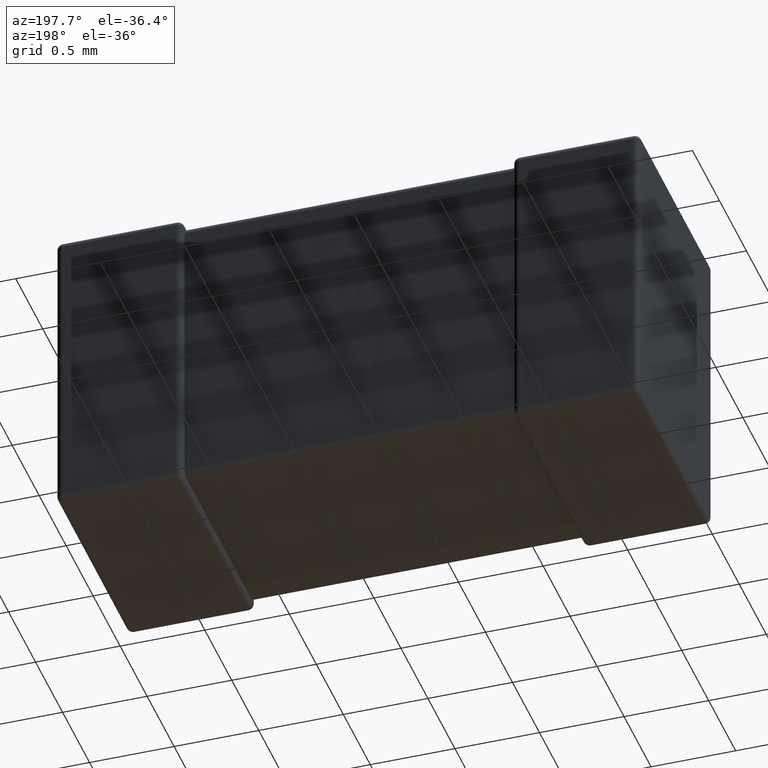
[diagram: clean part render]
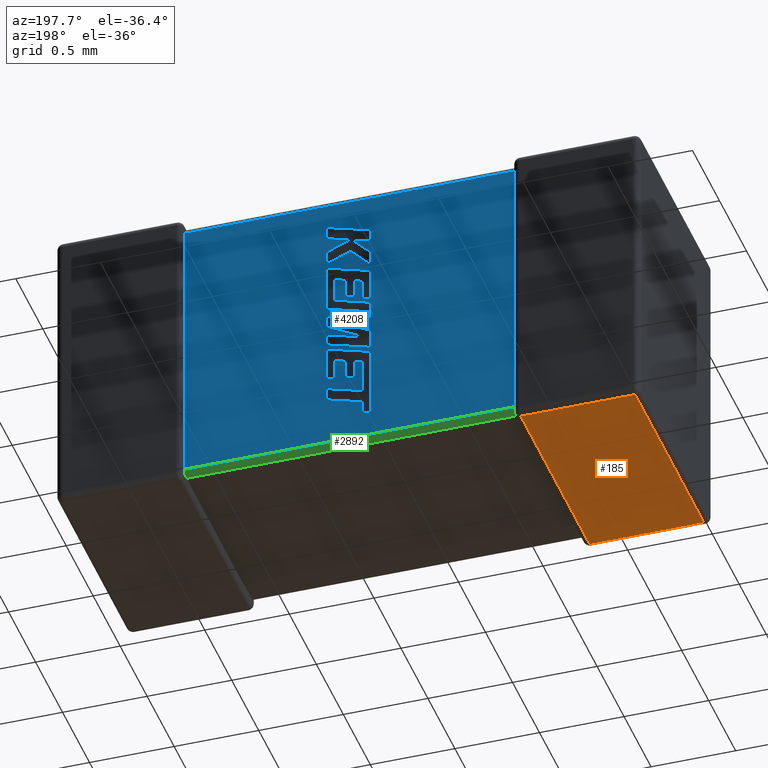
[diagram: same view with three faces highlighted in distinct colors, each labeled with its STEP entity id]
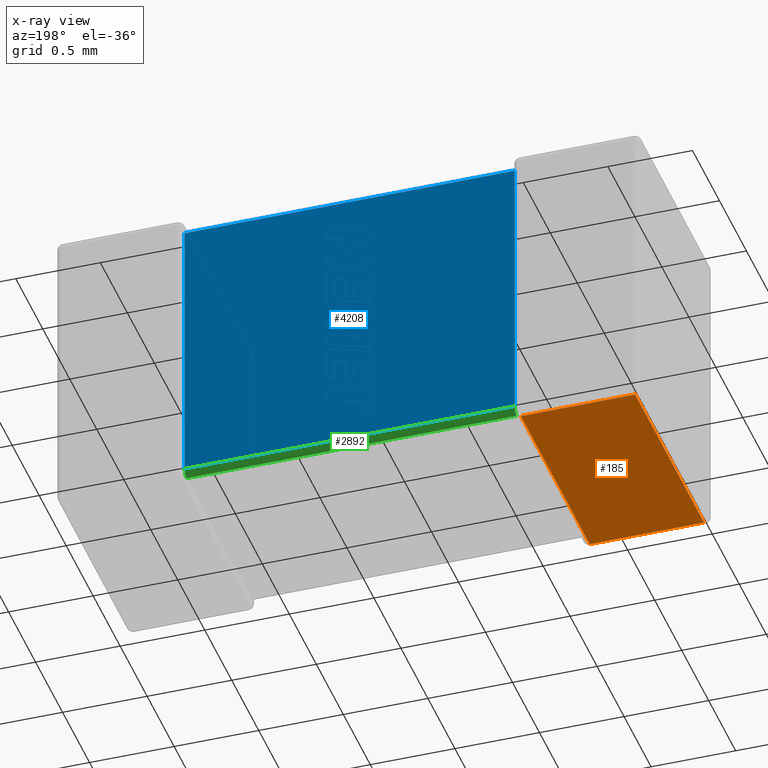
[diagram: x-ray of the same camera — body ghosted, the three highlighted faces saturated]
A machine part, auxiliary view with three faces highlighted in distinct colors.
The next image is the same camera in x-ray (body ghosted, the three faces saturated) — at least one of them is partly hidden behind the body in this view.
Their STEP definitions:

[orange] entity #185 — the highlighted planar face has unit normal (0, 0, 1).
#185 = ADVANCED_FACE ( 'NONE', ( #2792 ), #3484, .F. ) ;
#269 = ORIENTED_EDGE ( 'NONE', *, *, #2728, .T. ) ;
#605 = CARTESIAN_POINT ( 'NONE',  ( 3.450000000000000178, 0.000000000000000000, -1.800000000000000044 ) ) ;
#819 = VERTEX_POINT ( 'NONE', #1152 ) ;
#1092 = VECTOR ( 'NONE', #3871, 1000.000000000000000 ) ;
#1116 = ORIENTED_EDGE ( 'NONE', *, *, #3596, .T. ) ;
#1122 = CARTESIAN_POINT ( 'NONE',  ( 0.03744000000000012596, 1.349999999999999867, -1.800000000000000044 ) ) ;
#1152 = CARTESIAN_POINT ( 'NONE',  ( 0.03744000000000012596, 1.312559999999999949, -1.800000000000000044 ) ) ;
#1338 = LINE ( 'NONE', #2818, #1092 ) ;
#1460 = VERTEX_POINT ( 'NONE', #2861 ) ;
#1465 = LINE ( 'NONE', #1122, #3670 ) ;
#1501 = VERTEX_POINT ( 'NONE', #4586 ) ;
#1982 = EDGE_CURVE ( 'NONE', #1460, #4117, #1338, .T. ) ;
#2076 = DIRECTION ( 'NONE',  ( 1.000000000000000000, -0.000000000000000000, -0.000000000000000000 ) ) ;
#2193 = DIRECTION ( 'NONE',  ( 0.000000000000000000, 1.000000000000000000, -0.000000000000000000 ) ) ;
#2386 = CARTESIAN_POINT ( 'NONE',  ( 3.450000000000000178, 1.312559999999999949, -1.800000000000000044 ) ) ;
#2427 = EDGE_CURVE ( 'NONE', #1501, #1460, #2484, .T. ) ;
#2484 = LINE ( 'NONE', #3576, #4649 ) ;
#2728 = EDGE_CURVE ( 'NONE', #4117, #819, #1465, .T. ) ;
#2759 = LINE ( 'NONE', #2386, #4136 ) ;
#2792 = FACE_OUTER_BOUND ( 'NONE', #4361, .T. ) ;
#2816 = DIRECTION ( 'NONE',  ( 0.000000000000000000, 0.000000000000000000, 1.000000000000000000 ) ) ;
#2818 = CARTESIAN_POINT ( 'NONE',  ( 3.450000000000000178, 0.03743999999999998718, -1.800000000000000044 ) ) ;
#2861 = CARTESIAN_POINT ( 'NONE',  ( 0.7125599999999887579, 0.03743999999999998718, -1.800000000000000044 ) ) ;
#3234 = DIRECTION ( 'NONE',  ( -8.687517407736433921E-15, -1.000000000000000000, 0.000000000000000000 ) ) ;
#3484 = PLANE ( 'NONE',  #3916 ) ;
#3576 = CARTESIAN_POINT ( 'NONE',  ( 0.7125599999999884249, 2.378155765263412910E-14, -1.800000000000000044 ) ) ;
#3596 = EDGE_CURVE ( 'NONE', #819, #1501, #2759, .T. ) ;
#3670 = VECTOR ( 'NONE', #2193, 1000.000000000000000 ) ;
#3804 = CARTESIAN_POINT ( 'NONE',  ( 0.03744000000000012596, 0.03743999999999998718, -1.800000000000000044 ) ) ;
#3871 = DIRECTION ( 'NONE',  ( -1.000000000000000000, -0.000000000000000000, 0.000000000000000000 ) ) ;
#3916 = AXIS2_PLACEMENT_3D ( 'NONE', #605, #2816, #4178 ) ;
#4117 = VERTEX_POINT ( 'NONE', #3804 ) ;
#4136 = VECTOR ( 'NONE', #2076, 1000.000000000000000 ) ;
#4178 = DIRECTION ( 'NONE',  ( 1.000000000000000000, 0.000000000000000000, -0.000000000000000000 ) ) ;
#4361 = EDGE_LOOP ( 'NONE', ( #4471, #4570, #269, #1116 ) ) ;
#4471 = ORIENTED_EDGE ( 'NONE', *, *, #2427, .T. ) ;
#4570 = ORIENTED_EDGE ( 'NONE', *, *, #1982, .T. ) ;
#4586 = CARTESIAN_POINT ( 'NONE',  ( 0.7125599999999997491, 1.312559999999999949, -1.800000000000000044 ) ) ;
#4649 = VECTOR ( 'NONE', #3234, 1000.000000000000000 ) ;

[blue] entity #4208 — the highlighted planar face has unit normal (0, -1, 0).
#75 = VECTOR ( 'NONE', #2346, 1000.000000000000000 ) ;
#153 = ORIENTED_EDGE ( 'NONE', *, *, #656, .F. ) ;
#285 = ORIENTED_EDGE ( 'NONE', *, *, #2111, .T. ) ;
#443 = LINE ( 'NONE', #1778, #2213 ) ;
#656 = EDGE_CURVE ( 'NONE', #3235, #3962, #3023, .T. ) ;
#658 = DIRECTION ( 'NONE',  ( 0.000000000000000000, -0.000000000000000000, -1.000000000000000000 ) ) ;
#751 = PLANE ( 'NONE',  #2852 ) ;
#1241 = CARTESIAN_POINT ( 'NONE',  ( 2.700000000000000178, 1.312559999999999949, -1.725120000000000209 ) ) ;
#1332 = VECTOR ( 'NONE', #3885, 1000.000000000000000 ) ;
#1697 = LINE ( 'NONE', #4196, #1332 ) ;
#1764 = CARTESIAN_POINT ( 'NONE',  ( 0.7499999999999998890, 1.312559999999999949, -1.725120000000000209 ) ) ;
#1778 = CARTESIAN_POINT ( 'NONE',  ( 0.7499999999999998890, 1.312559999999999949, -1.725120000000000209 ) ) ;
#1858 = VERTEX_POINT ( 'NONE', #4008 ) ;
#2111 = EDGE_CURVE ( 'NONE', #3235, #4288, #443, .T. ) ;
#2181 = DIRECTION ( 'NONE',  ( 0.000000000000000000, -1.000000000000000000, 0.000000000000000000 ) ) ;
#2213 = VECTOR ( 'NONE', #4422, 1000.000000000000000 ) ;
#2346 = DIRECTION ( 'NONE',  ( -0.000000000000000000, -0.000000000000000000, 1.000000000000000000 ) ) ;
#2852 = AXIS2_PLACEMENT_3D ( 'NONE', #3946, #2181, #658 ) ;
#2921 = FACE_OUTER_BOUND ( 'NONE', #2967, .T. ) ;
#2967 = EDGE_LOOP ( 'NONE', ( #153, #285, #3559, #4309 ) ) ;
#2970 = EDGE_CURVE ( 'NONE', #1858, #3962, #4618, .T. ) ;
#3023 = LINE ( 'NONE', #4491, #75 ) ;
#3224 = CARTESIAN_POINT ( 'NONE',  ( 2.700000000000000178, 1.312559999999999949, -0.07487999999999982170 ) ) ;
#3235 = VERTEX_POINT ( 'NONE', #1241 ) ;
#3559 = ORIENTED_EDGE ( 'NONE', *, *, #3601, .T. ) ;
#3601 = EDGE_CURVE ( 'NONE', #4288, #1858, #1697, .T. ) ;
#3885 = DIRECTION ( 'NONE',  ( -0.000000000000000000, -0.000000000000000000, 1.000000000000000000 ) ) ;
#3946 = CARTESIAN_POINT ( 'NONE',  ( 0.7499999999999998890, 1.312559999999999949, -1.800000000000000044 ) ) ;
#3962 = VERTEX_POINT ( 'NONE', #3224 ) ;
#4008 = CARTESIAN_POINT ( 'NONE',  ( 0.7499999999999998890, 1.312559999999999949, -0.07487999999999982170 ) ) ;
#4132 = VECTOR ( 'NONE', #4236, 1000.000000000000000 ) ;
#4196 = CARTESIAN_POINT ( 'NONE',  ( 0.7499999999999998890, 1.312559999999999949, -1.800000000000000044 ) ) ;
#4208 = ADVANCED_FACE ( 'NONE', ( #2921 ), #751, .F. ) ;
#4236 = DIRECTION ( 'NONE',  ( 1.000000000000000000, 0.000000000000000000, -0.000000000000000000 ) ) ;
#4288 = VERTEX_POINT ( 'NONE', #1764 ) ;
#4309 = ORIENTED_EDGE ( 'NONE', *, *, #2970, .T. ) ;
#4422 = DIRECTION ( 'NONE',  ( -1.000000000000000000, -0.000000000000000000, -0.000000000000000000 ) ) ;
#4491 = CARTESIAN_POINT ( 'NONE',  ( 2.700000000000000178, 1.312559999999999949, -1.800000000000000044 ) ) ;
#4545 = CARTESIAN_POINT ( 'NONE',  ( 2.700000000000000178, 1.312559999999999949, -0.07487999999999982170 ) ) ;
#4618 = LINE ( 'NONE', #4545, #4132 ) ;

[green] entity #2892 — the highlighted cylindrical surface (edge-blend (fillet) strip) has radius 0.0374 mm, axis along (1, 0, 0).
#45 = ORIENTED_EDGE ( 'NONE', *, *, #995, .F. ) ;
#57 = B_SPLINE_CURVE_WITH_KNOTS ( 'NONE', 3,
 ( #724, #1128, #1408, #2866, #3534, #293, #1723, #2152, #4630, #1378 ),
 .UNSPECIFIED., .F., .F.,
 ( 4, 3, 3, 4 ),
 ( 0.000000000000000000, 1.245931295866761281E-05, 2.494435532442501119E-05, 2.933501522755384668E-05 ),
 .UNSPECIFIED. ) ;
#160 = CARTESIAN_POINT ( 'NONE',  ( 0.7491896543124085817, 1.298879399743856577, -1.754308756031391914 ) ) ;
#283 = DIRECTION ( 'NONE',  ( 0.000000000000000000, 0.000000000000000000, -1.000000000000000000 ) ) ;
#293 = CARTESIAN_POINT ( 'NONE',  ( 2.700314308179935452, 1.295086621214437850, -1.757058327418119514 ) ) ;
#297 = EDGE_CURVE ( 'NONE', #3259, #570, #57, .T. ) ;
#443 = LINE ( 'NONE', #1778, #2213 ) ;
#468 = CARTESIAN_POINT ( 'NONE',  ( 0.7499897001034081523, 1.284830263302208619, -1.761490174966687361 ) ) ;
#570 = VERTEX_POINT ( 'NONE', #682 ) ;
#628 = CARTESIAN_POINT ( 'NONE',  ( 2.699999074182535708, 1.312406118760253593, -1.729033613440886130 ) ) ;
#635 = CARTESIAN_POINT ( 'NONE',  ( 0.7500000000000002220, 1.275120000000000031, -1.725120000000000209 ) ) ;
#655 = CARTESIAN_POINT ( 'NONE',  ( 2.700000000000000178, 1.312559999999999949, -1.725120000000000209 ) ) ;
#682 = CARTESIAN_POINT ( 'NONE',  ( 2.701641925300021008, 1.301594077887624490, -1.751594077887624445 ) ) ;
#724 = CARTESIAN_POINT ( 'NONE',  ( 2.700000000000000178, 1.275120000000000031, -1.762560000000000127 ) ) ;
#811 = CARTESIAN_POINT ( 'NONE',  ( 0.7500009258174639148, 1.279033613440885953, -1.762406118760253548 ) ) ;
#817 = CARTESIAN_POINT ( 'NONE',  ( 0.7483580746999793920, 1.301594077887624046, -1.751594077887624668 ) ) ;
#852 = CARTESIAN_POINT ( 'NONE',  ( 0.7497761951928439972, 1.292130894679474284, -1.758472407142571248 ) ) ;
#927 = FACE_OUTER_BOUND ( 'NONE', #3141, .T. ) ;
#950 = CARTESIAN_POINT ( 'NONE',  ( 0.7500000000000002220, 1.275120000000000031, -1.762560000000000127 ) ) ;
#984 = CARTESIAN_POINT ( 'NONE',  ( 2.700223804807155847, 1.308472407142571070, -1.742130894679474462 ) ) ;
#991 = CYLINDRICAL_SURFACE ( 'NONE', #4585, 0.03743999999999991085 ) ;
#995 = EDGE_CURVE ( 'NONE', #570, #3235, #3160, .T. ) ;
#1067 = CARTESIAN_POINT ( 'NONE',  ( 0.7498669199574908850, 1.309122905421320704, -1.741332204858916821 ) ) ;
#1124 = CARTESIAN_POINT ( 'NONE',  ( 0.7483580746999793920, 1.301594077887624046, -1.751594077887624668 ) ) ;
#1127 = ORIENTED_EDGE ( 'NONE', *, *, #2754, .F. ) ;
#1128 = CARTESIAN_POINT ( 'NONE',  ( 2.700000000000000178, 1.279273104319553545, -1.762560000000000127 ) ) ;
#1241 = CARTESIAN_POINT ( 'NONE',  ( 2.700000000000000178, 1.312559999999999949, -1.725120000000000209 ) ) ;
#1337 = CARTESIAN_POINT ( 'NONE',  ( 2.700419588535662552, 1.306689860369978362, -1.745625844641273128 ) ) ;
#1378 = CARTESIAN_POINT ( 'NONE',  ( 2.701641925300021008, 1.301594077887624490, -1.751594077887624445 ) ) ;
#1408 = CARTESIAN_POINT ( 'NONE',  ( 2.699981875489026351, 1.283483006658176828, -1.761849501569502152 ) ) ;
#1570 = VERTEX_POINT ( 'NONE', #1124 ) ;
#1723 = CARTESIAN_POINT ( 'NONE',  ( 2.700876593092027544, 1.298319807103547552, -1.754505754207748236 ) ) ;
#1724 = CARTESIAN_POINT ( 'NONE',  ( 2.700010299896591803, 1.311490174966687183, -1.734830263302209019 ) ) ;
#1739 = CARTESIAN_POINT ( 'NONE',  ( 0.7491234069079727442, 1.304505754207748280, -1.748319807103547507 ) ) ;
#1764 = CARTESIAN_POINT ( 'NONE',  ( 0.7499999999999998890, 1.312559999999999949, -1.725120000000000209 ) ) ;
#1778 = CARTESIAN_POINT ( 'NONE',  ( 0.7499999999999998890, 1.312559999999999949, -1.725120000000000209 ) ) ;
#1855 = CARTESIAN_POINT ( 'NONE',  ( 0.7495804114643375149, 1.295625844641272950, -1.756689860369978540 ) ) ;
#1877 = ORIENTED_EDGE ( 'NONE', *, *, #2111, .F. ) ;
#1942 = CARTESIAN_POINT ( 'NONE',  ( 0.7500000000000002220, 1.275120000000000031, -1.762560000000000127 ) ) ;
#1979 = CARTESIAN_POINT ( 'NONE',  ( 2.700810345687591596, 1.304308756031391958, -1.748879399743856977 ) ) ;
#2054 = CARTESIAN_POINT ( 'NONE',  ( 2.699999999999940670, 1.312560000000003502, -1.727073826076289009 ) ) ;
#2057 = CARTESIAN_POINT ( 'NONE',  ( 2.700000000000000178, 1.275120000000000031, -1.762560000000000127 ) ) ;
#2066 = DIRECTION ( 'NONE',  ( 1.000000000000000000, 0.000000000000000000, 0.000000000000000000 ) ) ;
#2111 = EDGE_CURVE ( 'NONE', #3235, #4288, #443, .T. ) ;
#2152 = CARTESIAN_POINT ( 'NONE',  ( 2.701077113600523383, 1.299472817018279880, -1.753595462526236215 ) ) ;
#2213 = VECTOR ( 'NONE', #4422, 1000.000000000000000 ) ;
#2441 = CARTESIAN_POINT ( 'NONE',  ( 2.700002811559151450, 1.312101173622828743, -1.730963491890830763 ) ) ;
#2501 = CARTESIAN_POINT ( 'NONE',  ( 0.7496856918200651698, 1.307058327418119337, -1.745086621214438027 ) ) ;
#2580 = CARTESIAN_POINT ( 'NONE',  ( 0.7500181245109733830, 1.311849501569501975, -1.733483006658177006 ) ) ;
#2634 = CARTESIAN_POINT ( 'NONE',  ( 0.7486719482836989847, 1.302618713104942705, -1.750569442670480536 ) ) ;
#2754 = EDGE_CURVE ( 'NONE', #4288, #1570, #3093, .T. ) ;
#2799 = VERTEX_POINT ( 'NONE', #1942 ) ;
#2866 = CARTESIAN_POINT ( 'NONE',  ( 2.700057437254053117, 1.287405502749922714, -1.760486934022921002 ) ) ;
#2892 = ADVANCED_FACE ( 'NONE', ( #927 ), #991, .T. ) ;
#2907 = EDGE_CURVE ( 'NONE', #2799, #3259, #3456, .T. ) ;
#2961 = CARTESIAN_POINT ( 'NONE',  ( 0.7499999999999998890, 1.312559999999999949, -1.725120000000000209 ) ) ;
#2994 = CARTESIAN_POINT ( 'NONE',  ( 0.7499971884408481726, 1.280963491890830364, -1.762101173622828920 ) ) ;
#3064 = CARTESIAN_POINT ( 'NONE',  ( 0.7489228863994765728, 1.303595462526236037, -1.749472817018280280 ) ) ;
#3093 = B_SPLINE_CURVE_WITH_KNOTS ( 'NONE', 3,
 ( #2961, #4313, #2580, #4033, #1067, #2501, #1739, #3064, #2634, #817 ),
 .UNSPECIFIED., .F., .F.,
 ( 4, 3, 3, 4 ),
 ( 0.000000000000000000, 1.245931295866762298E-05, 2.494435532442500781E-05, 2.933501522755426003E-05 ),
 .UNSPECIFIED. ) ;
#3141 = EDGE_LOOP ( 'NONE', ( #1127, #1877, #45, #4621, #3451, #3390 ) ) ;
#3160 = B_SPLINE_CURVE_WITH_KNOTS ( 'NONE', 3,
 ( #3799, #1979, #1337, #984, #3870, #1724, #2441, #628, #2054, #655 ),
 .UNSPECIFIED., .F., .F.,
 ( 4, 3, 3, 4 ),
 ( 0.000000000000000000, 1.178449470714599710E-05, 2.350683308088821115E-05, 2.930195342285762743E-05 ),
 .UNSPECIFIED. ) ;
#3190 = EDGE_CURVE ( 'NONE', #1570, #2799, #4660, .T. ) ;
#3235 = VERTEX_POINT ( 'NONE', #1241 ) ;
#3259 = VERTEX_POINT ( 'NONE', #2057 ) ;
#3296 = VECTOR ( 'NONE', #2066, 1000.000000000000000 ) ;
#3390 = ORIENTED_EDGE ( 'NONE', *, *, #3190, .F. ) ;
#3451 = ORIENTED_EDGE ( 'NONE', *, *, #2907, .F. ) ;
#3456 = LINE ( 'NONE', #950, #3296 ) ;
#3534 = CARTESIAN_POINT ( 'NONE',  ( 2.700133080042509182, 1.291332204858916866, -1.759122905421320660 ) ) ;
#3689 = CARTESIAN_POINT ( 'NONE',  ( 0.7500000000000590639, 1.277073826076288610, -1.762560000000003457 ) ) ;
#3727 = CARTESIAN_POINT ( 'NONE',  ( 0.7500000000000002220, 1.275120000000000031, -1.762560000000000127 ) ) ;
#3799 = CARTESIAN_POINT ( 'NONE',  ( 2.701641925300021008, 1.301594077887624490, -1.751594077887624445 ) ) ;
#3870 = CARTESIAN_POINT ( 'NONE',  ( 2.700028689506284163, 1.310248868100307051, -1.738647876869318765 ) ) ;
#4033 = CARTESIAN_POINT ( 'NONE',  ( 0.7499425627459470611, 1.310486934022920824, -1.737405502749922892 ) ) ;
#4054 = CARTESIAN_POINT ( 'NONE',  ( 0.7499713104937154595, 1.288647876869318365, -1.760248868100307229 ) ) ;
#4116 = CARTESIAN_POINT ( 'NONE',  ( 0.7483580746999793920, 1.301594077887624046, -1.751594077887624668 ) ) ;
#4288 = VERTEX_POINT ( 'NONE', #1764 ) ;
#4313 = CARTESIAN_POINT ( 'NONE',  ( 0.7499999999999998890, 1.312559999999999949, -1.729273104319553500 ) ) ;
#4422 = DIRECTION ( 'NONE',  ( -1.000000000000000000, -0.000000000000000000, -0.000000000000000000 ) ) ;
#4585 = AXIS2_PLACEMENT_3D ( 'NONE', #635, #4596, #283 ) ;
#4596 = DIRECTION ( 'NONE',  ( 1.000000000000000000, 0.000000000000000000, 0.000000000000000000 ) ) ;
#4621 = ORIENTED_EDGE ( 'NONE', *, *, #297, .F. ) ;
#4630 = CARTESIAN_POINT ( 'NONE',  ( 2.701328051716301193, 1.300569442670480358, -1.752618713104942882 ) ) ;
#4660 = B_SPLINE_CURVE_WITH_KNOTS ( 'NONE', 3,
 ( #4116, #160, #1855, #852, #4054, #468, #2994, #811, #3689, #3727 ),
 .UNSPECIFIED., .F., .F.,
 ( 4, 3, 3, 4 ),
 ( 0.000000000000000000, 1.178449470714563118E-05, 2.350683308088786556E-05, 2.930195342285707178E-05 ),
 .UNSPECIFIED. ) ;